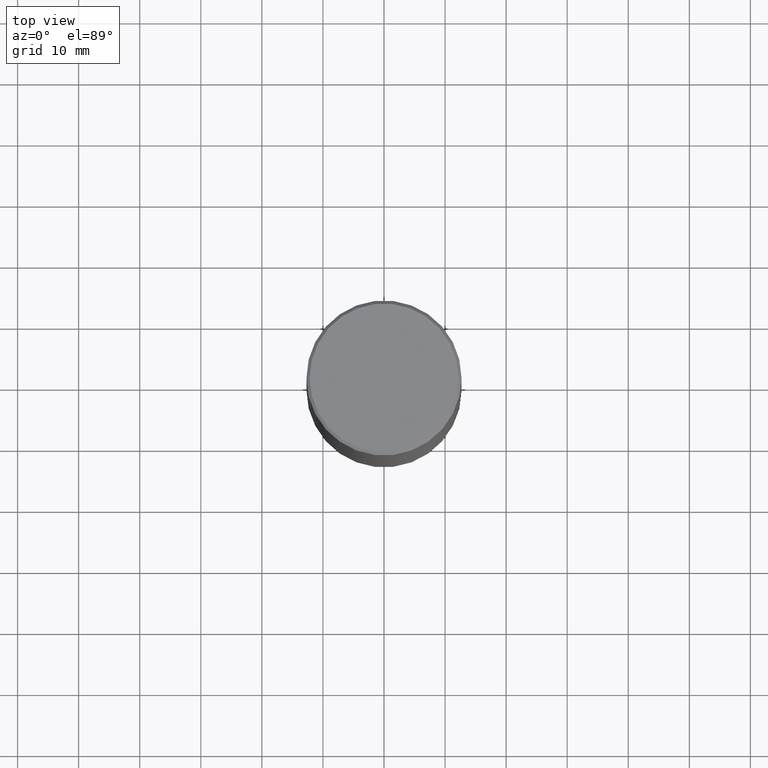
[diagram: clean part render]
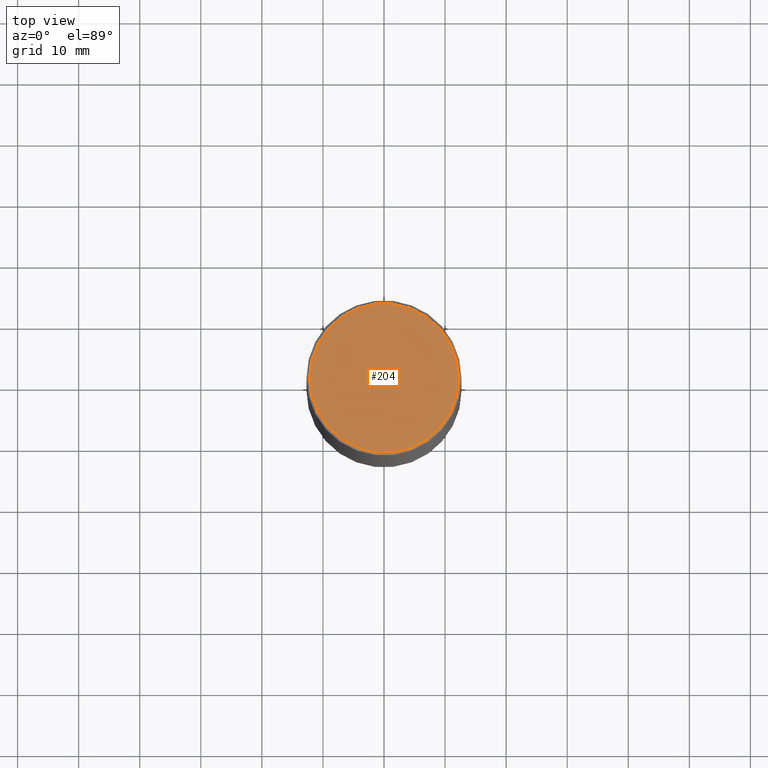
[diagram: same view with one face highlighted and labeled with its STEP entity id]
A machine part, top view. The second image highlights one B-rep face of the part: STEP entity #204.
In plain terms, the highlighted planar face has unit normal (0, -0, -1).
Its self-contained STEP definition (entity closure, byte-faithful):
#51 = ORIENTED_EDGE ( 'NONE', *, *, #395, .T. ) ;
#64 = ORIENTED_EDGE ( 'NONE', *, *, #375, .T. ) ;
#84 = DIRECTION ( 'NONE',  ( -2.445468806185136597E-29, 3.491481338843145583E-15, 1.000000000000000000 ) ) ;
#137 = CARTESIAN_POINT ( 'NONE',  ( -0.4799999999999998157, 3.386736898677839197E-15, 2.561107494060010972E-16 ) ) ;
#151 = CIRCLE ( 'NONE', #368, 0.4799999999999998157 ) ;
#161 = PLANE ( 'NONE',  #218 ) ;
#198 = DIRECTION ( 'NONE',  ( 2.438088387897960049E-29, -3.491481338843145188E-15, -1.000000000000000000 ) ) ;
#204 = ADVANCED_FACE ( 'NONE', ( #263 ), #161, .F. ) ;
#207 = CARTESIAN_POINT ( 'NONE',  ( -6.263108486011318684E-45, 8.942059022282684186E-31, 2.561107494060246644E-16 ) ) ;
#216 = CARTESIAN_POINT ( 'NONE',  ( 0.4799999999999998157, -3.396558832296481310E-15, 2.561107494060482809E-16 ) ) ;
#218 = AXIS2_PLACEMENT_3D ( 'NONE', #356, #198, #328 ) ;
#240 = DIRECTION ( 'NONE',  ( 1.000000000000000000, -6.982962677686266711E-15, 4.878011538933552085E-29 ) ) ;
#248 = CARTESIAN_POINT ( 'NONE',  ( -6.263108486011318684E-45, 8.942059022282684186E-31, 2.561107494060246644E-16 ) ) ;
#263 = FACE_OUTER_BOUND ( 'NONE', #329, .T. ) ;
#310 = VERTEX_POINT ( 'NONE', #216 ) ;
#317 = CIRCLE ( 'NONE', #383, 0.4799999999999998157 ) ;
#328 = DIRECTION ( 'NONE',  ( -1.000000000000000000, 6.982962677686265922E-15, -4.876176775795935793E-29 ) ) ;
#329 = EDGE_LOOP ( 'NONE', ( #51, #64 ) ) ;
#330 = DIRECTION ( 'NONE',  ( 1.000000000000000000, -6.982962677686266711E-15, 4.878011538933552085E-29 ) ) ;
#356 = CARTESIAN_POINT ( 'NONE',  ( 3.351822085289406364E-15, 0.4799999999999998157, -1.547855667941696890E-15 ) ) ;
#368 = AXIS2_PLACEMENT_3D ( 'NONE', #248, #84, #330 ) ;
#374 = VERTEX_POINT ( 'NONE', #137 ) ;
#375 = EDGE_CURVE ( 'NONE', #310, #374, #317, .T. ) ;
#383 = AXIS2_PLACEMENT_3D ( 'NONE', #207, #393, #240 ) ;
#393 = DIRECTION ( 'NONE',  ( -2.445468806185136597E-29, 3.491481338843145583E-15, 1.000000000000000000 ) ) ;
#395 = EDGE_CURVE ( 'NONE', #374, #310, #151, .T. ) ;